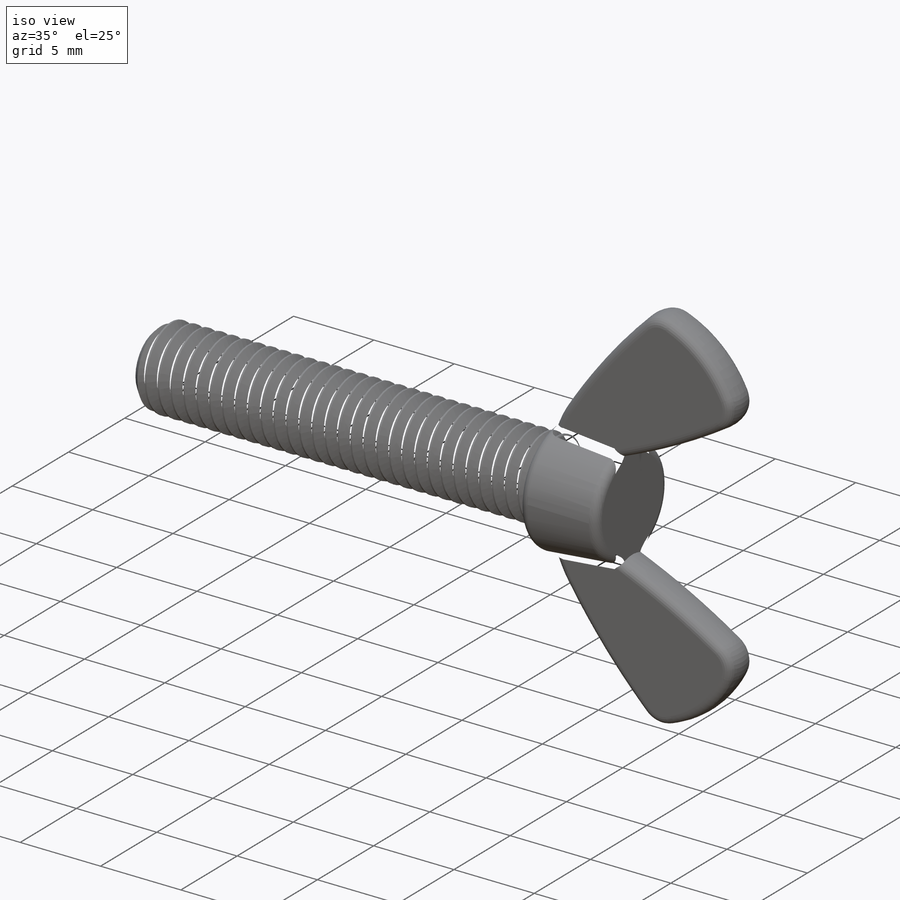
[diagram: iso view]
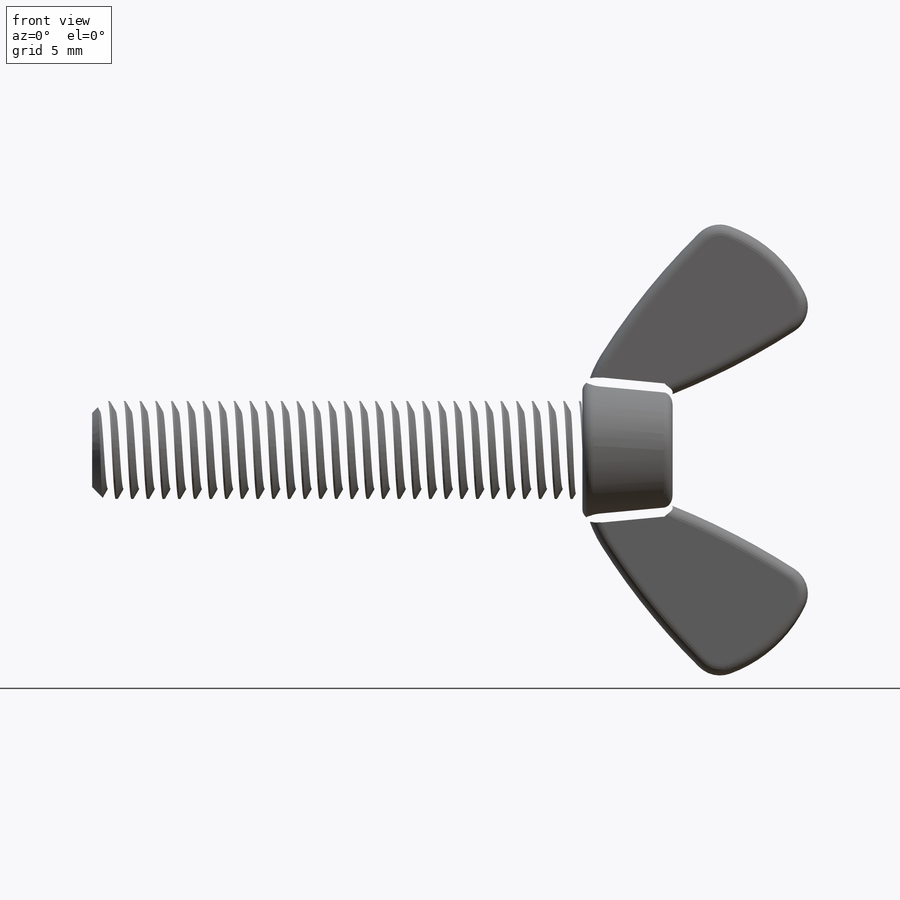
[diagram: front view]
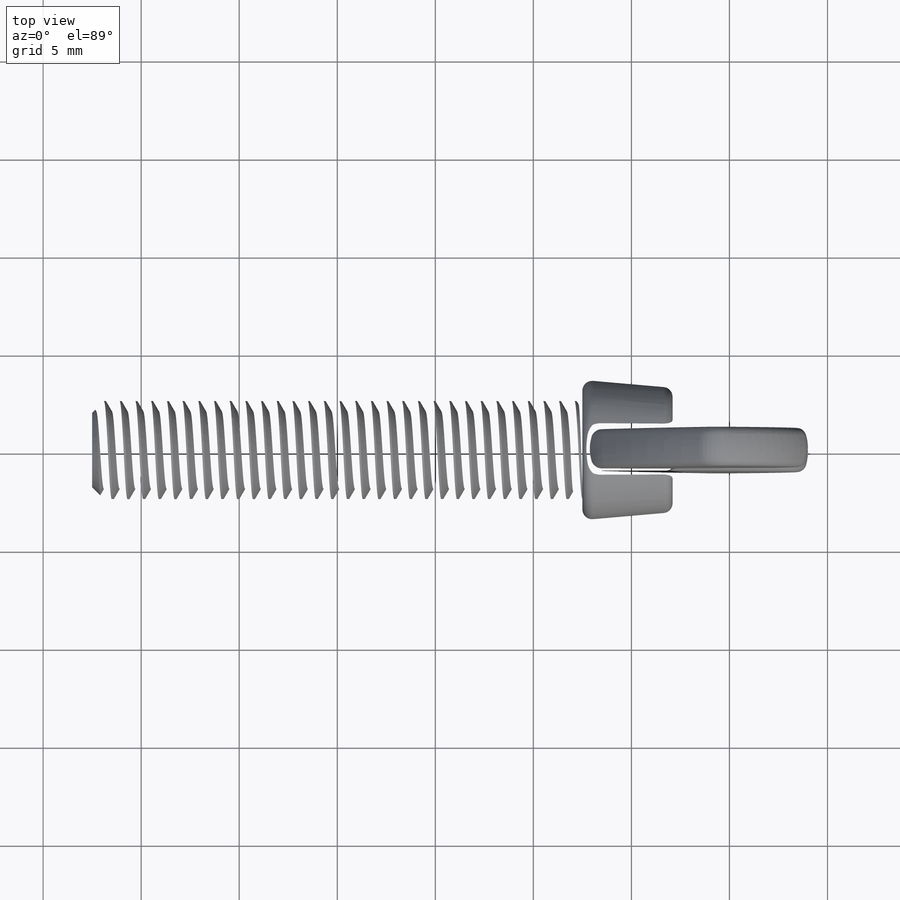
[diagram: top view]
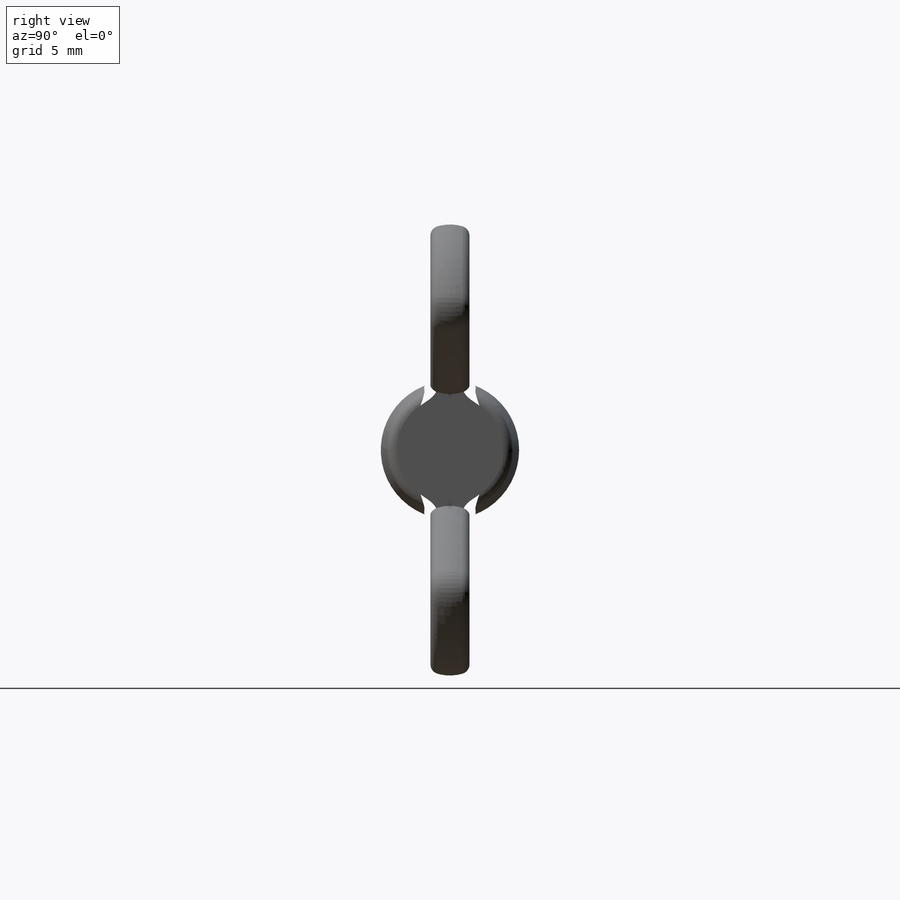
[diagram: right view]
SOLIDWORKS PART (.sldprt)
format: sldprt  version: not decoded by parser v0  size: 1,680,384 bytes
history: native  units: mm
features: sketch x11, extrude x5, fillet x5, sweep x2, material x1, chamfer x1, helix x1, plane x1, boolean_combine x1 (+15 scaffold rows collapsed)
feature tree (43):
  scaffold x15  (default folders/planes/origin — collapsed)
  material  "Material <not specified>"
  sketch  "Sketch1"  dims[c1.D4=1.524mm c1.D2=~0.79375mm c1.D8=1.5mm c1.D11=1.5mm c1.D12=1.5mm c1.Thread Dia=5.0mm c2.D2=~54.451681mm c2.D3=~24.869215mm c3.D2=~19.446875mm c3.Thread Length=25.0mm c3.Head Height=~9.921875mm c3.D1=2.8mm c3.Wing Width=23.0mm c4.Head Height=11.5mm c4.D3=6.5mm c4.D4=7.62mm c4.D5=~9.921875mm c5.D5=5.0deg c5.D2=6.9mm c5.D4=4.83mm c5.D6=~8.652448mm c5.D7=~4.326224mm c5.D9=0.5mm c5.D10=0.5mm c5.D8=1.0mm]
  sketch  "Sketch3"
  extrude  "Boss-Extrude1"  [1 undecoded]
  chamfer  "Chamfer1"  Distance=0.6mm Angle=45deg
  sketch  "Sketch4"  dims[D1=0.0mm]
  helix  "Helix/Spiral1"  Pitch=26mm
  sketch  "Sketch5"  dims[c1.D1=~5.844341mm c2.D1=60.0deg c2.D2=0.1mm c2.D3=0.4mm]
  sweep  "Cut-Sweep1"
  sketch  "Sketch9"  dims[D1=0.0mm]
  extrude  "Boss-Extrude3"  [1 undecoded]
  plane  "Plane1"
  sketch  "Sketch2"  dims[c1.Head Dia=~27.384375mm c1.base=~13.513176mm c1.D2=~3.188613mm c1.D1=10.795mm c1.D3=6.35mm c2.D1=~31.620753mm c2.Wing Width=~19.446875mm c2.D2=~4.248912mm c2.D4=~1.45796mm]
  extrude  "Boss-Extrude2"  [1 undecoded]
  sketch  "Sketch10"
  extrude  "Boss-Extrude4"  Depth=2mm
  fillet  "Fillet5"  Radius=6.35mm
  sketch  "Sketch12"  dims[c1.D1=0.254mm c1.D2=0.254mm c2.D1=0.254mm c2.D2=0.254mm c3.D1=0.25mm c3.D2=0.25mm]
  sketch  "Sketch13"  dims[D1=0.0mm]
  sweep  "Cut-Sweep3"
  sketch  "Sketch15"  dims[D1=1.0mm]
  extrude  "Boss-Extrude5"  Depth=1mm
  fillet  "Fillet1"  Radius=0.5mm
  fillet  "Fillet4"  Radius=0.5mm
  boolean_combine  "Combine1"
  fillet  "Fillet3"  Radius=0.5mm
  fillet  "Fillet8"  Radius=0.4mm
  sketch  "Sketch14"  dims[D1=11.5mm D2=11.5mm]
decode coverage: 18 of 26 modeling features carry decoded parameters
note: ~ marks probable driven/reference dimensions
note: 3 parameter values undecoded
summary: no parameter record found for 3 features
note: suppression state not decoded; provenance and decode notes live in map.json
